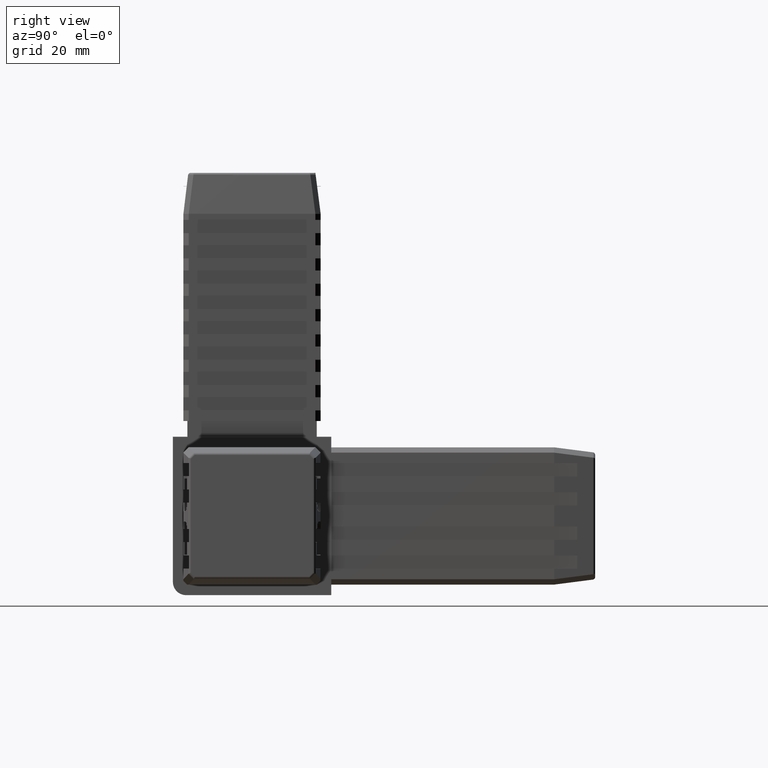
[diagram: clean part render]
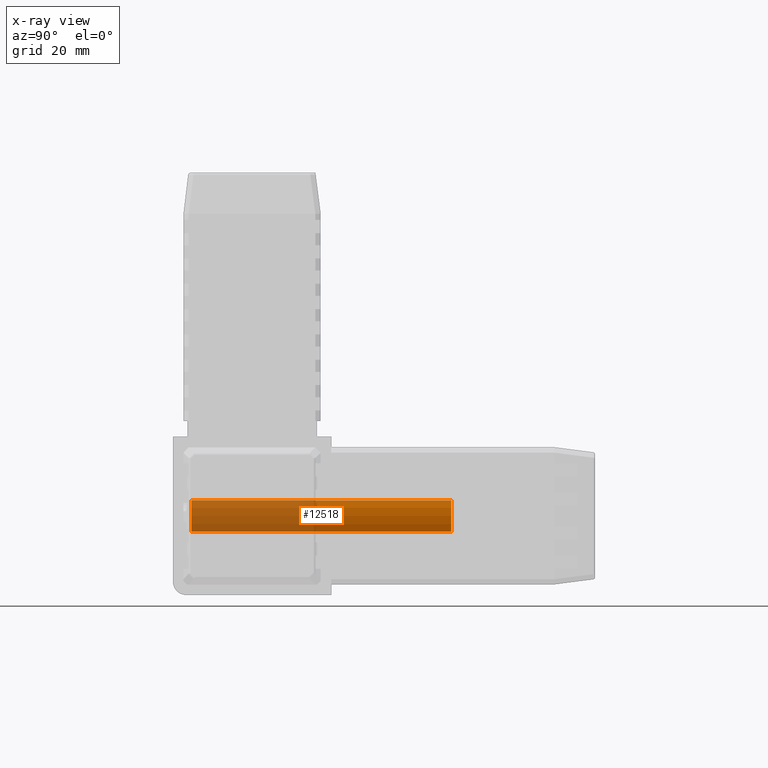
[diagram: x-ray — body ghosted, one internal face saturated and labeled with its STEP entity id]
A machine part, right view, then the same camera in x-ray: the body is ghosted and one INTERNAL B-rep face — a face not visible from any outside direction — is saturated and labeled: STEP entity #12518.
In plain terms, the highlighted cylindrical surface (partial cylindrical patch) has radius 7.086 mm, axis along (0, -1, 0).
Its self-contained STEP definition (entity closure, byte-faithful):
#160=CIRCLE('',#13228,7.086);
#344=CIRCLE('',#13526,7.086);
#1350=FACE_OUTER_BOUND('',#2043,.T.);
#2043=EDGE_LOOP('',(#10837,#10838,#10839,#10840));
#3338=LINE('',#19575,#4828);
#3341=LINE('',#19585,#4831);
#4828=VECTOR('',#15703,10.);
#4831=VECTOR('',#15716,10.);
#6081=VERTEX_POINT('',#19558);
#6083=VERTEX_POINT('',#19563);
#6086=VERTEX_POINT('',#19573);
#6087=VERTEX_POINT('',#19581);
#7614=EDGE_CURVE('',#6086,#6083,#3338,.T.);
#7617=EDGE_CURVE('',#6083,#6081,#160,.T.);
#7620=EDGE_CURVE('',#6081,#6087,#3341,.T.);
#8054=EDGE_CURVE('',#6087,#6086,#344,.T.);
#10837=ORIENTED_EDGE('',*,*,#7614,.F.);
#10838=ORIENTED_EDGE('',*,*,#8054,.F.);
#10839=ORIENTED_EDGE('',*,*,#7620,.F.);
#10840=ORIENTED_EDGE('',*,*,#7617,.F.);
#12045=CYLINDRICAL_SURFACE('',#13525,7.086);
#12518=ADVANCED_FACE('',(#1350),#12045,.F.);
#13228=AXIS2_PLACEMENT_3D('',#19579,#15709,#15710);
#13525=AXIS2_PLACEMENT_3D('',#20685,#16555,#16556);
#13526=AXIS2_PLACEMENT_3D('',#20686,#16557,#16558);
#15703=DIRECTION('',(0.,1.,0.));
#15709=DIRECTION('center_axis',(0.,-1.,0.));
#15710=DIRECTION('ref_axis',(1.,0.,-3.13356766758441E-16));
#15716=DIRECTION('',(0.,-1.,0.));
#16555=DIRECTION('center_axis',(0.,-1.,0.));
#16556=DIRECTION('ref_axis',(-0.824082984629733,0.,-0.566469093988146));
#16557=DIRECTION('center_axis',(0.,1.,0.));
#16558=DIRECTION('ref_axis',(-0.824082984629733,0.,-0.566469093988146));
#19558=CARTESIAN_POINT('',(6.4420089065698,37.75,2.95159571209801));
#19563=CARTESIAN_POINT('',(6.4420089065698,37.75,-2.95159571209801));
#19573=CARTESIAN_POINT('',(6.4420089065698,-11.5,-2.95159571209801));
#19575=CARTESIAN_POINT('',(6.4420089065698,38.5,-2.95159571209801));
#19579=CARTESIAN_POINT('Origin',(0.,37.75,-2.22044604925031E-15));
#19581=CARTESIAN_POINT('',(6.4420089065698,-11.5,2.95159571209801));
#19585=CARTESIAN_POINT('',(6.4420089065698,38.5,2.95159571209801));
#20685=CARTESIAN_POINT('Origin',(0.,38.5,-2.22044604925031E-15));
#20686=CARTESIAN_POINT('Origin',(0.,-11.5,-2.22044604925031E-15));